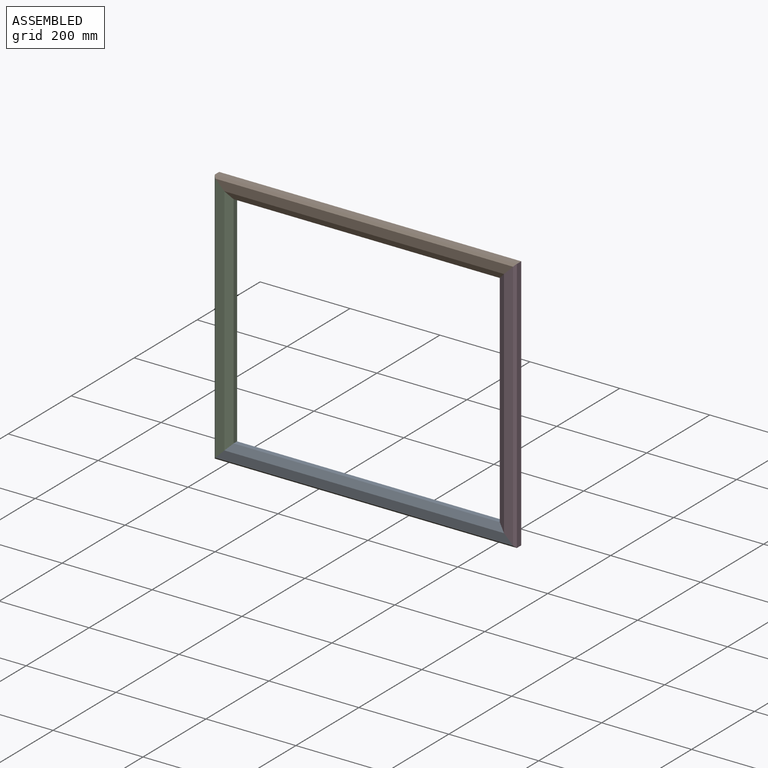
[diagram: assembled view]
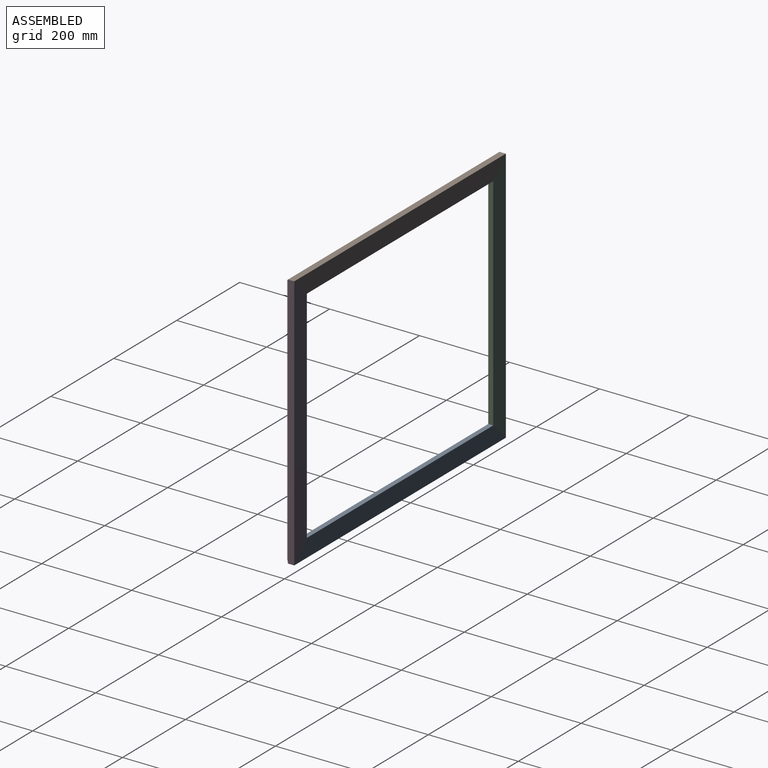
[diagram: assembled view, second angle]
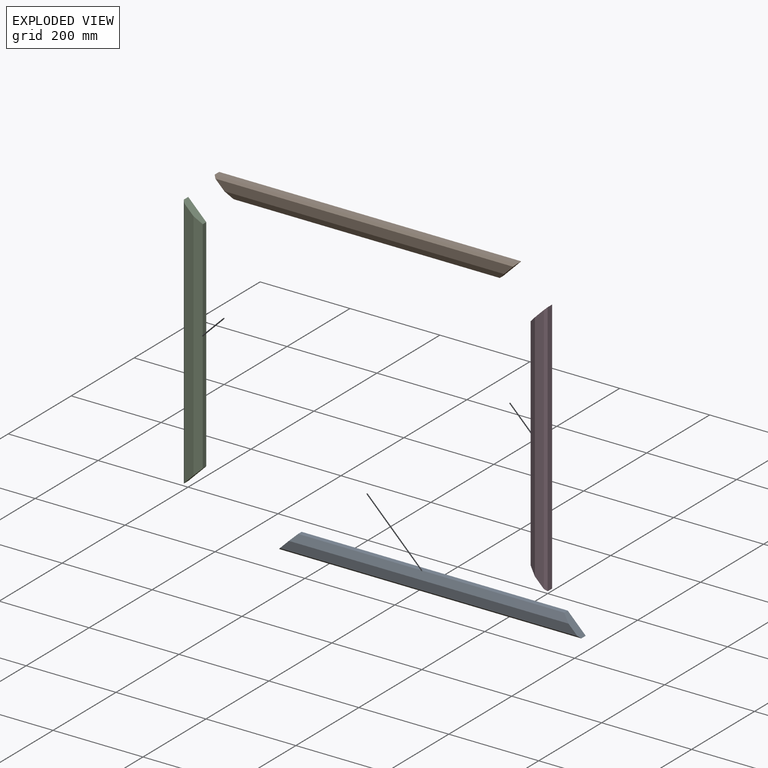
[diagram: exploded view]
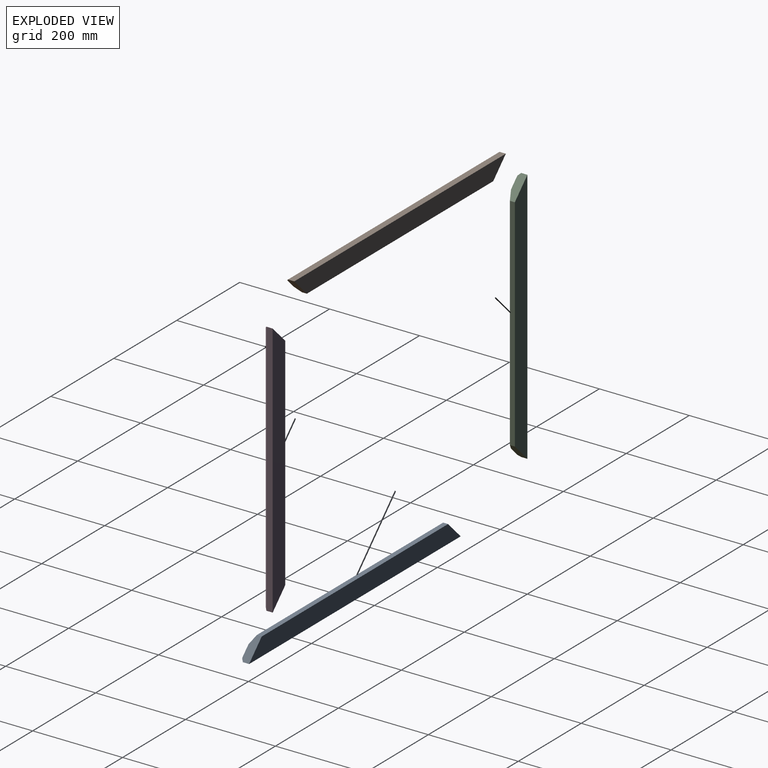
[diagram: exploded view, second angle]
ASSEMBLY  parts=4 mates=3
PART A: 8 faces, bbox 672x19x40 mm
  f0: plane 672x40mm, normal (0,1,0), area 25280mm2, adj f1,f5,f6,f7
  f1: plane 592x11mm, normal (0,0,1), area 6512mm2, adj f0,f2,f6,f7
  f2: plane 622x15mm, normal (0,-0.88,0.47), area 10319mm2, adj f1,f3,f6,f7
  f3: plane 662x20mm, normal (0,-1,0), area 12840mm2, adj f2,f4,f6,f7
  f4: plane 672x5mm, normal (0,-0.71,-0.71), area 4716.4mm2, adj f3,f5,f6,f7
  f5: plane 672x14mm, normal (0,0,-1), area 9408mm2, adj f0,f4,f6,f7
  f6: plane 40x40mm, normal (0.71,0,0.71), area 972.3mm2, adj f0,f1,f2,f3,f4,f5
  f7: plane 40x40mm, normal (-0.71,0,0.71), area 972.3mm2, adj f0,f1,f2,f3,f4,f5
PART B: same geometry as A
PART C: 8 faces, bbox 40x19x571 mm
  f0: plane 491x11mm, normal (1,0,0), area 5401mm2, adj f1,f4,f6,f7
  f1: plane 571x40mm, normal (0,1,0), area 21240mm2, adj f0,f5,f6,f7
  f2: plane 571x5mm, normal (-0.71,-0.71,0), area 4002.2mm2, adj f3,f5,f6,f7
  f3: plane 561x20mm, normal (0,-1,0), area 10820mm2, adj f2,f4,f6,f7
  f4: plane 521x15mm, normal (0.47,-0.88,0), area 8602mm2, adj f0,f3,f6,f7
  f5: plane 571x14mm, normal (-1,0,0), area 7994mm2, adj f1,f2,f6,f7
  f6: plane 40x40mm, normal (0.71,0,0.71), area 972.3mm2, adj f0,f1,f2,f3,f4,f5
  f7: plane 40x40mm, normal (0.71,0,-0.71), area 972.3mm2, adj f0,f1,f2,f3,f4,f5
PART D: same geometry as C
PLACE A t=(0.4,212.53,-282.12)mm
PLACE B rot(axis=(0,-1,0),180deg) t=(672.4,212.53,288.88)mm
PLACE C t=(0.4,212.53,-282.12)mm
PLACE D rot(axis=(0,-1,0),180deg) t=(672.4,212.53,288.88)mm
MATE parallel D.f7 <-> B.f7  axis (-0.71,0,0.71) through (653.37,203.77,269.86)mm
MATE parallel C.f6 <-> B.f6  axis (0.71,0,0.71) through (19.42,203.77,269.86)mm
MATE parallel A.f7 <-> C.f7  axis (-0.71,0,0.71) through (19.42,203.77,-263.1)mm
